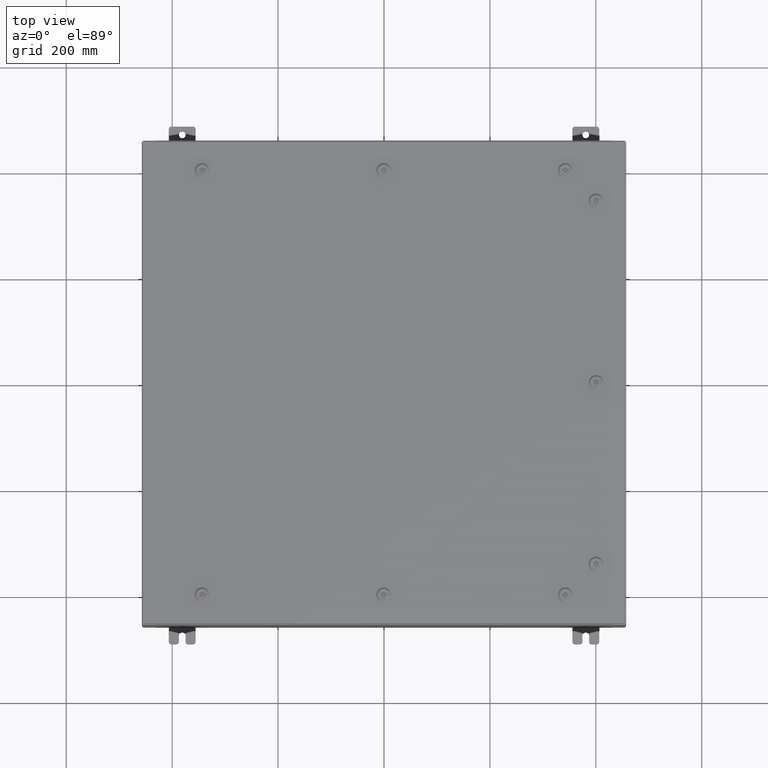
[diagram: clean part render]
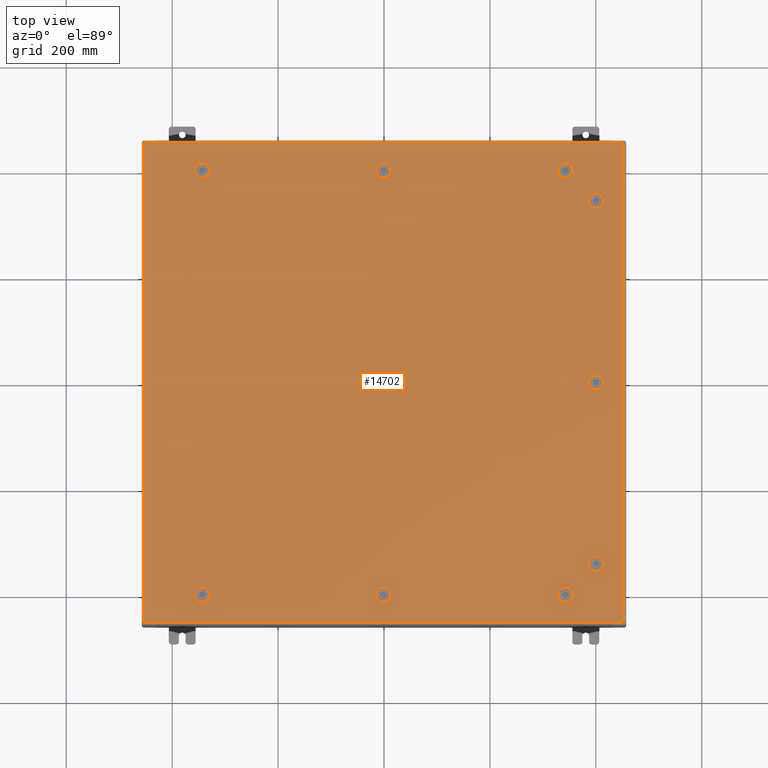
[diagram: same view with one face highlighted and labeled with its STEP entity id]
A machine part, top view. The second image highlights one B-rep face of the part: STEP entity #14702.
In plain terms, the highlighted planar face has unit normal (0, 0, -1).
Its self-contained STEP definition (entity closure, byte-faithful):
#84 = ORIENTED_EDGE ( 'NONE', *, *, #4617, .F. ) ;
#136 = VERTEX_POINT ( 'NONE', #55654 ) ;
#167 = DIRECTION ( 'NONE',  ( 1.000000000000000000, -0.0000000000000000000, -0.0000000000000000000 ) ) ;
#255 = DIRECTION ( 'NONE',  ( 0.0000000000000000000, 0.0000000000000000000, 1.000000000000000000 ) ) ;
#260 = AXIS2_PLACEMENT_3D ( 'NONE', #65249, #33523, #1820 ) ;
#743 = DIRECTION ( 'NONE',  ( 1.000000000000000000, 0.0000000000000000000, 0.0000000000000000000 ) ) ;
#1001 = DIRECTION ( 'NONE',  ( -1.000000000000000000, 0.0000000000000000000, 7.785697190086061500E-029 ) ) ;
#1033 = DIRECTION ( 'NONE',  ( -6.982962677686266700E-015, -6.982962677686266700E-015, 1.000000000000000000 ) ) ;
#1062 = CARTESIAN_POINT ( 'NONE',  ( -17.84979999999999800, -17.84979999999999800, -2.048885995248197400E-016 ) ) ;
#1188 = DIRECTION ( 'NONE',  ( 5.478697338139220100E-015, 1.000000000000000000, 6.982962677686228100E-015 ) ) ;
#1321 = VECTOR ( 'NONE', #66426, 39.37007874015748100 ) ;
#1329 = EDGE_CURVE ( 'NONE', #37570, #46465, #41864, .T. ) ;
#1343 = CIRCLE ( 'NONE', #22733, 0.4424999999999961700 ) ;
#1820 = DIRECTION ( 'NONE',  ( 1.000000000000000000, 0.0000000000000000000, 0.0000000000000000000 ) ) ;
#1841 = VECTOR ( 'NONE', #38104, 39.37007874015748100 ) ;
#1919 = VERTEX_POINT ( 'NONE', #65759 ) ;
#2201 = CARTESIAN_POINT ( 'NONE',  ( -13.30054762473210200, -15.39280000000000300, -2.493734682567286900E-013 ) ) ;
#2258 = EDGE_CURVE ( 'NONE', #33039, #64110, #36796, .T. ) ;
#2467 = CARTESIAN_POINT ( 'NONE',  ( -13.30054762473209400, -16.18279999999999000, -2.548900087721007400E-013 ) ) ;
#2507 = DIRECTION ( 'NONE',  ( 0.0000000000000000000, 0.0000000000000000000, 1.000000000000000000 ) ) ;
#2641 = CARTESIAN_POINT ( 'NONE',  ( 1.529834876451987200E-014, -15.78779999999999500, -2.521317385144146900E-013 ) ) ;
#2755 = LINE ( 'NONE', #38252, #60786 ) ;
#2900 = CARTESIAN_POINT ( 'NONE',  ( -13.49999999999998600, 15.78779999999999500, 0.0000000000000000000 ) ) ;
#2976 = EDGE_CURVE ( 'NONE', #136, #62379, #2755, .T. ) ;
#3071 = VERTEX_POINT ( 'NONE', #54706 ) ;
#3361 = CARTESIAN_POINT ( 'NONE',  ( 0.4425000000000126100, 15.78779999999999500, 0.0000000000000000000 ) ) ;
#3412 = DIRECTION ( 'NONE',  ( -1.000000000000000000, -0.0000000000000000000, -6.982962677686265900E-015 ) ) ;
#3430 = DIRECTION ( 'NONE',  ( 1.000000000000000000, 0.0000000000000000000, 0.0000000000000000000 ) ) ;
#3502 = VECTOR ( 'NONE', #48443, 39.37007874015748100 ) ;
#3702 = ORIENTED_EDGE ( 'NONE', *, *, #8834, .T. ) ;
#3941 = CARTESIAN_POINT ( 'NONE',  ( 0.1994523752678995500, 15.39279999999999900, 0.0000000000000000000 ) ) ;
#4617 = EDGE_CURVE ( 'NONE', #41003, #43374, #7604, .T. ) ;
#5189 = VECTOR ( 'NONE', #167, 39.37007874015748100 ) ;
#5759 = CARTESIAN_POINT ( 'NONE',  ( 15.78780000000000600, 13.50000000000001800, 0.0000000000000000000 ) ) ;
#5997 = CARTESIAN_POINT ( 'NONE',  ( 0.0000000000000000000, 0.0000000000000000000, 0.0000000000000000000 ) ) ;
#6594 = VERTEX_POINT ( 'NONE', #46239 ) ;
#6671 = VERTEX_POINT ( 'NONE', #57542 ) ;
#7236 = CARTESIAN_POINT ( 'NONE',  ( -0.1994523752678689600, -15.39279999999999900, -2.493734682567286400E-013 ) ) ;
#7458 = VECTOR ( 'NONE', #17198, 39.37007874015748100 ) ;
#7604 = LINE ( 'NONE', #63474, #21705 ) ;
#7630 = EDGE_CURVE ( 'NONE', #3071, #38540, #47163, .T. ) ;
#7969 = DIRECTION ( 'NONE',  ( 0.0000000000000000000, 1.000000000000000000, 6.982962677686270700E-015 ) ) ;
#8011 = EDGE_CURVE ( 'NONE', #31448, #41632, #35442, .T. ) ;
#8069 = VERTEX_POINT ( 'NONE', #36093 ) ;
#8224 = DIRECTION ( 'NONE',  ( 1.000000000000000000, 0.0000000000000000000, 0.0000000000000000000 ) ) ;
#8429 = LINE ( 'NONE', #36898, #34919 ) ;
#8506 = VERTEX_POINT ( 'NONE', #59247 ) ;
#8562 = DIRECTION ( 'NONE',  ( -0.0000000000000000000, -6.982962677686266700E-015, 1.000000000000000000 ) ) ;
#8576 = FACE_BOUND ( 'NONE', #49106, .T. ) ;
#8596 = VECTOR ( 'NONE', #31185, 39.37007874015748100 ) ;
#8673 = VERTEX_POINT ( 'NONE', #39986 ) ;
#8693 = DIRECTION ( 'NONE',  ( 0.0000000000000000000, 0.0000000000000000000, 1.000000000000000000 ) ) ;
#8700 = EDGE_LOOP ( 'NONE', ( #29620, #19243, #26898, #16759, #17093 ) ) ;
#8834 = EDGE_CURVE ( 'NONE', #41562, #55018, #37085, .T. ) ;
#8958 = VECTOR ( 'NONE', #46333, 39.37007874015748100 ) ;
#9057 = LINE ( 'NONE', #45118, #46384 ) ;
#9372 = ORIENTED_EDGE ( 'NONE', *, *, #7630, .F. ) ;
#9386 = AXIS2_PLACEMENT_3D ( 'NONE', #51513, #19702, #56805 ) ;
#9603 = ORIENTED_EDGE ( 'NONE', *, *, #65874, .F. ) ;
#9851 = CARTESIAN_POINT ( 'NONE',  ( 13.49999999999998600, -15.78779999999999900, -1.578617423656501800E-013 ) ) ;
#9902 = VECTOR ( 'NONE', #39394, 39.37007874015748100 ) ;
#9949 = AXIS2_PLACEMENT_3D ( 'NONE', #2900, #39970, #8224 ) ;
#10236 = FACE_BOUND ( 'NONE', #48684, .T. ) ;
#10536 = VECTOR ( 'NONE', #20021, 39.37007874015748100 ) ;
#10583 = VERTEX_POINT ( 'NONE', #64910 ) ;
#10593 = CIRCLE ( 'NONE', #38990, 0.4424999999999983400 ) ;
#10904 = CARTESIAN_POINT ( 'NONE',  ( -17.84979999999998100, 17.84979999999999800, -2.048885995248197400E-016 ) ) ;
#11062 = DIRECTION ( 'NONE',  ( 1.000000000000000000, 0.0000000000000000000, 0.0000000000000000000 ) ) ;
#11197 = CARTESIAN_POINT ( 'NONE',  ( 13.30054762473210200, 15.39279999999999900, -9.287722765629301200E-014 ) ) ;
#11287 = DIRECTION ( 'NONE',  ( 0.0000000000000000000, 0.0000000000000000000, -1.000000000000000000 ) ) ;
#11830 = ORIENTED_EDGE ( 'NONE', *, *, #48312, .F. ) ;
#11840 = CARTESIAN_POINT ( 'NONE',  ( -13.30054762473209400, 16.18279999999998600, 0.0000000000000000000 ) ) ;
#12114 = VERTEX_POINT ( 'NONE', #26027 ) ;
#12492 = EDGE_CURVE ( 'NONE', #44415, #6594, #25301, .T. ) ;
#12505 = CIRCLE ( 'NONE', #50710, 0.4424999999999961700 ) ;
#12583 = DIRECTION ( 'NONE',  ( 6.982962677686266700E-015, -0.0000000000000000000, 1.000000000000000000 ) ) ;
#12743 = CARTESIAN_POINT ( 'NONE',  ( 0.1994523752679070700, -16.18279999999998600, -2.548900087721007400E-013 ) ) ;
#12957 = CARTESIAN_POINT ( 'NONE',  ( 17.84979999999999800, -17.84979999999999800, -2.048885995248197400E-016 ) ) ;
#13039 = ORIENTED_EDGE ( 'NONE', *, *, #50912, .F. ) ;
#13162 = AXIS2_PLACEMENT_3D ( 'NONE', #28182, #65222, #33494 ) ;
#13505 = ORIENTED_EDGE ( 'NONE', *, *, #40192, .F. ) ;
#13646 = CARTESIAN_POINT ( 'NONE',  ( -13.05749999999998900, -15.78779999999999900, -2.521317385144146900E-013 ) ) ;
#13889 = AXIS2_PLACEMENT_3D ( 'NONE', #64192, #32439, #743 ) ;
#14228 = DIRECTION ( 'NONE',  ( 6.982962677686266700E-015, -0.0000000000000000000, 1.000000000000000000 ) ) ;
#14401 = CARTESIAN_POINT ( 'NONE',  ( -0.1994523752678657400, -16.18279999999999000, 0.0000000000000000000 ) ) ;
#14702 = ADVANCED_FACE ( 'NONE', ( #52588, #50891, #25989, #10236, #36776, #22662, #8576, #63272, #49256, #35065 ), #48190, .F. ) ;
#15161 = DIRECTION ( 'NONE',  ( 1.000000000000000000, 0.0000000000000000000, 6.982962677686304600E-015 ) ) ;
#15263 = LINE ( 'NONE', #55450, #55925 ) ;
#15441 = EDGE_CURVE ( 'NONE', #56810, #56915, #40026, .T. ) ;
#16226 = LINE ( 'NONE', #61529, #28666 ) ;
#16535 = CARTESIAN_POINT ( 'NONE',  ( -0.1994523752678657400, 16.18279999999999000, 0.0000000000000000000 ) ) ;
#16563 = DIRECTION ( 'NONE',  ( 6.982962677686266700E-015, -0.0000000000000000000, 1.000000000000000000 ) ) ;
#16622 = CARTESIAN_POINT ( 'NONE',  ( 0.1994523752679067700, 16.18279999999998600, 0.0000000000000000000 ) ) ;
#16759 = ORIENTED_EDGE ( 'NONE', *, *, #68372, .F. ) ;
#17072 = CARTESIAN_POINT ( 'NONE',  ( 16.18280000000000700, -13.30054762473213300, -9.287722765629316300E-014 ) ) ;
#17093 = ORIENTED_EDGE ( 'NONE', *, *, #1329, .F. ) ;
#17162 = CIRCLE ( 'NONE', #54663, 0.4424999999999961700 ) ;
#17198 = DIRECTION ( 'NONE',  ( 1.000000000000000000, -1.095739467627832000E-014, 6.982962677686152300E-015 ) ) ;
#17575 = LINE ( 'NONE', #16622, #3502 ) ;
#17897 = DIRECTION ( 'NONE',  ( 1.000000000000000000, -0.0000000000000000000, -0.0000000000000000000 ) ) ;
#17951 = EDGE_CURVE ( 'NONE', #47012, #58377, #19920, .T. ) ;
#18297 = CARTESIAN_POINT ( 'NONE',  ( 13.30054762473209400, 16.18279999999998600, -9.287722765629296100E-014 ) ) ;
#18357 = DIRECTION ( 'NONE',  ( 0.0000000000000000000, -1.000000000000000000, 0.0000000000000000000 ) ) ;
#18553 = VERTEX_POINT ( 'NONE', #2201 ) ;
#18610 = DIRECTION ( 'NONE',  ( 0.0000000000000000000, 1.000000000000000000, 6.982962677686270700E-015 ) ) ;
#18762 = AXIS2_PLACEMENT_3D ( 'NONE', #24556, #61614, #29850 ) ;
#18942 = ORIENTED_EDGE ( 'NONE', *, *, #52135, .F. ) ;
#19243 = ORIENTED_EDGE ( 'NONE', *, *, #17951, .F. ) ;
#19271 = EDGE_CURVE ( 'NONE', #6671, #52810, #53904, .T. ) ;
#19702 = DIRECTION ( 'NONE',  ( 0.0000000000000000000, 0.0000000000000000000, 1.000000000000000000 ) ) ;
#19781 = CARTESIAN_POINT ( 'NONE',  ( 15.39280000000001200, -13.30054762473213400, 0.0000000000000000000 ) ) ;
#19860 = EDGE_CURVE ( 'NONE', #53903, #8673, #60021, .T. ) ;
#19872 = CIRCLE ( 'NONE', #60905, 0.4424999999999961700 ) ;
#19920 = CIRCLE ( 'NONE', #18762, 0.4424999999999969000 ) ;
#20021 = DIRECTION ( 'NONE',  ( -1.000000000000000000, -0.0000000000000000000, -0.0000000000000000000 ) ) ;
#20192 = AXIS2_PLACEMENT_3D ( 'NONE', #58341, #26596, #63648 ) ;
#20227 = EDGE_CURVE ( 'NONE', #56915, #8069, #62455, .T. ) ;
#20450 = VECTOR ( 'NONE', #58279, 39.37007874015748100 ) ;
#20537 = ORIENTED_EDGE ( 'NONE', *, *, #38611, .F. ) ;
#21191 = CARTESIAN_POINT ( 'NONE',  ( 15.39280000000001400, 13.69945237526790600, 0.0000000000000000000 ) ) ;
#21196 = ORIENTED_EDGE ( 'NONE', *, *, #35280, .F. ) ;
#21221 = EDGE_CURVE ( 'NONE', #64110, #28075, #48379, .T. ) ;
#21449 = CARTESIAN_POINT ( 'NONE',  ( 15.78780000000000800, -13.50000000000001800, -9.426999614876466400E-014 ) ) ;
#21643 = EDGE_CURVE ( 'NONE', #22486, #6671, #61528, .T. ) ;
#21705 = VECTOR ( 'NONE', #63255, 39.37007874015748100 ) ;
#21823 = CARTESIAN_POINT ( 'NONE',  ( -13.69945237526786900, 15.39279999999999900, 0.0000000000000000000 ) ) ;
#22002 = CIRCLE ( 'NONE', #51927, 0.4424999999999961700 ) ;
#22431 = EDGE_CURVE ( 'NONE', #64691, #41562, #8429, .T. ) ;
#22486 = VERTEX_POINT ( 'NONE', #21823 ) ;
#22662 = FACE_BOUND ( 'NONE', #51184, .T. ) ;
#22733 = AXIS2_PLACEMENT_3D ( 'NONE', #66857, #35117, #3430 ) ;
#22893 = VERTEX_POINT ( 'NONE', #25675 ) ;
#23278 = EDGE_LOOP ( 'NONE', ( #59585, #64594, #3702, #35744 ) ) ;
#23481 = ORIENTED_EDGE ( 'NONE', *, *, #57834, .F. ) ;
#23878 = VERTEX_POINT ( 'NONE', #44855 ) ;
#23982 = LINE ( 'NONE', #18297, #9902 ) ;
#24454 = CIRCLE ( 'NONE', #9949, 0.4424999999999983400 ) ;
#24474 = CARTESIAN_POINT ( 'NONE',  ( 13.49999999999998600, -15.78779999999999900, -1.578617423656501800E-013 ) ) ;
#24556 = CARTESIAN_POINT ( 'NONE',  ( 1.529834876451987200E-014, 15.78779999999999500, 0.0000000000000000000 ) ) ;
#25070 = CARTESIAN_POINT ( 'NONE',  ( 15.39280000000001000, -0.1994523752678671000, 0.0000000000000000000 ) ) ;
#25144 = VERTEX_POINT ( 'NONE', #33766 ) ;
#25151 = DIRECTION ( 'NONE',  ( 1.095739467627838000E-014, -1.000000000000000000, -6.982962677686269100E-015 ) ) ;
#25301 = LINE ( 'NONE', #29360, #53578 ) ;
#25344 = CIRCLE ( 'NONE', #52444, 0.4424999999999973400 ) ;
#25483 = EDGE_CURVE ( 'NONE', #62379, #36465, #45563, .T. ) ;
#25675 = CARTESIAN_POINT ( 'NONE',  ( 15.39280000000001000, 13.30054762473213400, 0.0000000000000000000 ) ) ;
#25989 = FACE_BOUND ( 'NONE', #36688, .T. ) ;
#26027 = CARTESIAN_POINT ( 'NONE',  ( 13.69945237526786900, -15.39280000000000300, 0.0000000000000000000 ) ) ;
#26175 = EDGE_CURVE ( 'NONE', #41632, #42017, #36360, .T. ) ;
#26237 = VECTOR ( 'NONE', #1001, 39.37007874015748100 ) ;
#26596 = DIRECTION ( 'NONE',  ( -0.0000000000000000000, -6.982962677686266700E-015, 1.000000000000000000 ) ) ;
#26711 = CARTESIAN_POINT ( 'NONE',  ( 15.78780000000000800, -13.50000000000001800, -9.426999614876466400E-014 ) ) ;
#26796 = CARTESIAN_POINT ( 'NONE',  ( -13.30054762473210200, 15.39279999999999900, 0.0000000000000000000 ) ) ;
#26803 = DIRECTION ( 'NONE',  ( 0.0000000000000000000, 1.000000000000000000, 6.982962677686269100E-015 ) ) ;
#26862 = CARTESIAN_POINT ( 'NONE',  ( -13.30054762473209400, 16.18279999999998600, 0.0000000000000000000 ) ) ;
#26898 = ORIENTED_EDGE ( 'NONE', *, *, #60676, .F. ) ;
#27459 = ORIENTED_EDGE ( 'NONE', *, *, #21221, .F. ) ;
#27564 = CARTESIAN_POINT ( 'NONE',  ( 1.529834876451987200E-014, -15.78779999999999500, -2.521317385144146900E-013 ) ) ;
#27625 = EDGE_CURVE ( 'NONE', #43235, #54197, #47901, .T. ) ;
#28075 = VERTEX_POINT ( 'NONE', #30937 ) ;
#28182 = CARTESIAN_POINT ( 'NONE',  ( -13.49999999999998600, -15.78779999999999900, -2.521317385144146900E-013 ) ) ;
#28342 = EDGE_CURVE ( 'NONE', #38540, #30471, #54491, .T. ) ;
#28484 = DIRECTION ( 'NONE',  ( -0.0000000000000000000, -6.982962677686266700E-015, 1.000000000000000000 ) ) ;
#28510 = CARTESIAN_POINT ( 'NONE',  ( 16.18280000000000400, 13.30054762473213300, 0.0000000000000000000 ) ) ;
#28666 = VECTOR ( 'NONE', #3412, 39.37007874015748100 ) ;
#28766 = LINE ( 'NONE', #51632, #41224 ) ;
#29138 = CARTESIAN_POINT ( 'NONE',  ( -13.69945237526786700, -16.18279999999999700, 0.0000000000000000000 ) ) ;
#29248 = EDGE_CURVE ( 'NONE', #6594, #41176, #1343, .T. ) ;
#29360 = CARTESIAN_POINT ( 'NONE',  ( 16.18280000000000000, 13.69945237526790100, 0.0000000000000000000 ) ) ;
#29620 = ORIENTED_EDGE ( 'NONE', *, *, #36952, .F. ) ;
#29770 = DIRECTION ( 'NONE',  ( 1.000000000000000000, 0.0000000000000000000, 6.982962677686270700E-015 ) ) ;
#29850 = DIRECTION ( 'NONE',  ( 1.000000000000000000, 0.0000000000000000000, 0.0000000000000000000 ) ) ;
#30079 = ORIENTED_EDGE ( 'NONE', *, *, #63948, .F. ) ;
#30471 = VERTEX_POINT ( 'NONE', #7236 ) ;
#30916 = VERTEX_POINT ( 'NONE', #67636 ) ;
#30937 = CARTESIAN_POINT ( 'NONE',  ( 16.18280000000000700, -0.1994523752678676000, 0.0000000000000000000 ) ) ;
#31049 = EDGE_LOOP ( 'NONE', ( #60035, #68272, #37847, #20537 ) ) ;
#31185 = DIRECTION ( 'NONE',  ( -1.095739467627836100E-014, -1.000000000000000000, 0.0000000000000000000 ) ) ;
#31356 = VECTOR ( 'NONE', #17897, 39.37007874015748100 ) ;
#31448 = VERTEX_POINT ( 'NONE', #29138 ) ;
#31618 = CARTESIAN_POINT ( 'NONE',  ( 0.1994523752678995500, -15.39279999999999900, -2.493734682567286900E-013 ) ) ;
#31749 = EDGE_CURVE ( 'NONE', #52810, #43235, #24454, .T. ) ;
#31933 = CARTESIAN_POINT ( 'NONE',  ( 1.529834876451987200E-014, 15.78779999999999500, 0.0000000000000000000 ) ) ;
#32439 = DIRECTION ( 'NONE',  ( 0.0000000000000000000, 0.0000000000000000000, 1.000000000000000000 ) ) ;
#32723 = CARTESIAN_POINT ( 'NONE',  ( 13.49999999999998600, -15.78779999999999900, -1.578617423656501800E-013 ) ) ;
#32861 = DIRECTION ( 'NONE',  ( 0.0000000000000000000, 1.000000000000000000, 6.982962677686304600E-015 ) ) ;
#33039 = VERTEX_POINT ( 'NONE', #36596 ) ;
#33052 = CARTESIAN_POINT ( 'NONE',  ( 13.69945237526786700, -16.18279999999999700, -1.592272441308647100E-013 ) ) ;
#33169 = CIRCLE ( 'NONE', #48074, 0.4424999999999983400 ) ;
#33494 = DIRECTION ( 'NONE',  ( 0.0000000000000000000, 1.000000000000000000, 6.982962677686270700E-015 ) ) ;
#33523 = DIRECTION ( 'NONE',  ( 0.0000000000000000000, 0.0000000000000000000, 1.000000000000000000 ) ) ;
#33631 = CARTESIAN_POINT ( 'NONE',  ( 0.1994523752678995500, 15.39279999999999900, 0.0000000000000000000 ) ) ;
#33766 = CARTESIAN_POINT ( 'NONE',  ( 13.30054762473209400, 16.18279999999998600, -9.287722765629296100E-014 ) ) ;
#34221 = CARTESIAN_POINT ( 'NONE',  ( 15.78780000000000600, 1.529834876451990400E-014, 0.0000000000000000000 ) ) ;
#34294 = EDGE_CURVE ( 'NONE', #10583, #25144, #23982, .T. ) ;
#34531 = LINE ( 'NONE', #21191, #20450 ) ;
#34919 = VECTOR ( 'NONE', #68615, 39.37007874015748100 ) ;
#35065 = FACE_OUTER_BOUND ( 'NONE', #23278, .T. ) ;
#35117 = DIRECTION ( 'NONE',  ( 0.0000000000000000000, 0.0000000000000000000, 1.000000000000000000 ) ) ;
#35280 = EDGE_CURVE ( 'NONE', #8673, #62961, #48133, .T. ) ;
#35442 = LINE ( 'NONE', #56954, #8958 ) ;
#35744 = ORIENTED_EDGE ( 'NONE', *, *, #52579, .T. ) ;
#36064 = EDGE_CURVE ( 'NONE', #42017, #18553, #67061, .T. ) ;
#36093 = CARTESIAN_POINT ( 'NONE',  ( 13.94249999999998300, 15.78779999999999500, -9.735995713364067600E-014 ) ) ;
#36242 = EDGE_CURVE ( 'NONE', #18553, #23878, #9057, .T. ) ;
#36360 = CIRCLE ( 'NONE', #43998, 0.4424999999999983400 ) ;
#36465 = VERTEX_POINT ( 'NONE', #19781 ) ;
#36550 = CARTESIAN_POINT ( 'NONE',  ( 15.39280000000001400, 0.1994523752679053800, 0.0000000000000000000 ) ) ;
#36590 = ORIENTED_EDGE ( 'NONE', *, *, #26175, .F. ) ;
#36596 = CARTESIAN_POINT ( 'NONE',  ( 15.39280000000001400, 0.1994523752679062100, 0.0000000000000000000 ) ) ;
#36688 = EDGE_LOOP ( 'NONE', ( #37546, #27459, #40452, #18942 ) ) ;
#36776 = FACE_BOUND ( 'NONE', #41605, .T. ) ;
#36796 = LINE ( 'NONE', #36550, #8596 ) ;
#36898 = CARTESIAN_POINT ( 'NONE',  ( 17.84979999999999800, -17.84979999999999800, -2.048885995248197400E-016 ) ) ;
#36952 = EDGE_CURVE ( 'NONE', #58377, #37570, #54632, .T. ) ;
#37085 = LINE ( 'NONE', #51834, #10536 ) ;
#37274 = CIRCLE ( 'NONE', #38493, 0.4424999999999983400 ) ;
#37302 = DIRECTION ( 'NONE',  ( 1.000000000000000000, 0.0000000000000000000, 0.0000000000000000000 ) ) ;
#37546 = ORIENTED_EDGE ( 'NONE', *, *, #68622, .F. ) ;
#37570 = VERTEX_POINT ( 'NONE', #3941 ) ;
#37847 = ORIENTED_EDGE ( 'NONE', *, *, #2976, .F. ) ;
#37986 = AXIS2_PLACEMENT_3D ( 'NONE', #24474, #61536, #29770 ) ;
#38079 = DIRECTION ( 'NONE',  ( 1.000000000000000000, 0.0000000000000000000, 6.982962677686304600E-015 ) ) ;
#38104 = DIRECTION ( 'NONE',  ( 1.000000000000000000, -0.0000000000000000000, -0.0000000000000000000 ) ) ;
#38167 = ORIENTED_EDGE ( 'NONE', *, *, #31749, .F. ) ;
#38252 = CARTESIAN_POINT ( 'NONE',  ( 16.18280000000000400, -13.69945237526790100, -9.566276464123617700E-014 ) ) ;
#38382 = VECTOR ( 'NONE', #58937, 39.37007874015748100 ) ;
#38493 = AXIS2_PLACEMENT_3D ( 'NONE', #2641, #39701, #7969 ) ;
#38540 = VERTEX_POINT ( 'NONE', #31618 ) ;
#38611 = EDGE_CURVE ( 'NONE', #54400, #136, #17162, .T. ) ;
#38651 = CIRCLE ( 'NONE', #42143, 0.4424999999999961700 ) ;
#38990 = AXIS2_PLACEMENT_3D ( 'NONE', #5759, #42835, #11062 ) ;
#39394 = DIRECTION ( 'NONE',  ( -1.000000000000000000, -1.095739467627832000E-014, 6.982962677686228800E-015 ) ) ;
#39570 = DIRECTION ( 'NONE',  ( 1.000000000000000000, 0.0000000000000000000, 0.0000000000000000000 ) ) ;
#39701 = DIRECTION ( 'NONE',  ( -0.0000000000000000000, -6.982962677686266700E-015, 1.000000000000000000 ) ) ;
#39856 = CIRCLE ( 'NONE', #20192, 0.4424999999999961700 ) ;
#39970 = DIRECTION ( 'NONE',  ( 0.0000000000000000000, 0.0000000000000000000, 1.000000000000000000 ) ) ;
#39986 = CARTESIAN_POINT ( 'NONE',  ( 13.30054762473209400, -16.18279999999999000, -1.620127811158077700E-013 ) ) ;
#40026 = LINE ( 'NONE', #11197, #38382 ) ;
#40192 = EDGE_CURVE ( 'NONE', #12114, #53903, #16226, .T. ) ;
#40295 = CARTESIAN_POINT ( 'NONE',  ( -13.49999999999998600, -15.78779999999999900, -2.521317385144146900E-013 ) ) ;
#40429 = CARTESIAN_POINT ( 'NONE',  ( 15.78780000000000600, 1.529834876451990400E-014, 0.0000000000000000000 ) ) ;
#40452 = ORIENTED_EDGE ( 'NONE', *, *, #2258, .F. ) ;
#41003 = VERTEX_POINT ( 'NONE', #14401 ) ;
#41176 = VERTEX_POINT ( 'NONE', #47358 ) ;
#41224 = VECTOR ( 'NONE', #25151, 39.37007874015748100 ) ;
#41562 = VERTEX_POINT ( 'NONE', #60150 ) ;
#41605 = EDGE_LOOP ( 'NONE', ( #67035, #49418, #51635, #64442, #36590 ) ) ;
#41632 = VERTEX_POINT ( 'NONE', #2467 ) ;
#41864 = CIRCLE ( 'NONE', #9386, 0.4424999999999973400 ) ;
#42017 = VERTEX_POINT ( 'NONE', #13646 ) ;
#42143 = AXIS2_PLACEMENT_3D ( 'NONE', #27564, #64599, #32861 ) ;
#42720 = CIRCLE ( 'NONE', #58150, 0.4424999999999983400 ) ;
#42835 = DIRECTION ( 'NONE',  ( 0.0000000000000000000, 0.0000000000000000000, 1.000000000000000000 ) ) ;
#42841 = CARTESIAN_POINT ( 'NONE',  ( -0.1994523752678689600, 15.39279999999999900, 0.0000000000000000000 ) ) ;
#43082 = EDGE_CURVE ( 'NONE', #54197, #22486, #53424, .T. ) ;
#43235 = VERTEX_POINT ( 'NONE', #11840 ) ;
#43374 = VERTEX_POINT ( 'NONE', #12743 ) ;
#43754 = ORIENTED_EDGE ( 'NONE', *, *, #20227, .F. ) ;
#43809 = AXIS2_PLACEMENT_3D ( 'NONE', #48375, #16563, #53708 ) ;
#43998 = AXIS2_PLACEMENT_3D ( 'NONE', #40295, #8562, #45660 ) ;
#44362 = CARTESIAN_POINT ( 'NONE',  ( 13.49999999999998600, 15.78779999999999500, -9.426999614876453700E-014 ) ) ;
#44415 = VERTEX_POINT ( 'NONE', #28510 ) ;
#44855 = CARTESIAN_POINT ( 'NONE',  ( -13.69945237526786900, -15.39280000000000300, -2.493734682567286400E-013 ) ) ;
#45012 = EDGE_CURVE ( 'NONE', #8506, #64691, #45807, .T. ) ;
#45117 = ORIENTED_EDGE ( 'NONE', *, *, #50175, .F. ) ;
#45118 = CARTESIAN_POINT ( 'NONE',  ( -13.30054762473210200, -15.39280000000000300, -2.493734682567286900E-013 ) ) ;
#45409 = DIRECTION ( 'NONE',  ( -5.478697338139220100E-015, 1.000000000000000000, -0.0000000000000000000 ) ) ;
#45563 = CIRCLE ( 'NONE', #46627, 0.4424999999999983400 ) ;
#45660 = DIRECTION ( 'NONE',  ( 0.0000000000000000000, 1.000000000000000000, 6.982962677686270700E-015 ) ) ;
#45789 = DIRECTION ( 'NONE',  ( 1.000000000000000000, 0.0000000000000000000, 0.0000000000000000000 ) ) ;
#45807 = LINE ( 'NONE', #1062, #1841 ) ;
#46030 = CARTESIAN_POINT ( 'NONE',  ( 13.49999999999998600, 15.78779999999999500, -9.426999614876453700E-014 ) ) ;
#46086 = EDGE_LOOP ( 'NONE', ( #63054, #9603, #11830, #52948 ) ) ;
#46239 = CARTESIAN_POINT ( 'NONE',  ( 16.18280000000000000, 13.69945237526790100, 0.0000000000000000000 ) ) ;
#46267 = ORIENTED_EDGE ( 'NONE', *, *, #19860, .F. ) ;
#46333 = DIRECTION ( 'NONE',  ( 1.000000000000000000, 1.095739467627832000E-014, 7.785697190085955000E-029 ) ) ;
#46384 = VECTOR ( 'NONE', #50445, 39.37007874015748100 ) ;
#46465 = VERTEX_POINT ( 'NONE', #3361 ) ;
#46627 = AXIS2_PLACEMENT_3D ( 'NONE', #26711, #50396, #18610 ) ;
#46970 = DIRECTION ( 'NONE',  ( -6.982962677686266700E-015, -6.982962677686266700E-015, 1.000000000000000000 ) ) ;
#47012 = VERTEX_POINT ( 'NONE', #16535 ) ;
#47163 = CIRCLE ( 'NONE', #48698, 0.4424999999999983400 ) ;
#47358 = CARTESIAN_POINT ( 'NONE',  ( 15.39280000000001400, 13.69945237526790600, 0.0000000000000000000 ) ) ;
#47525 = ORIENTED_EDGE ( 'NONE', *, *, #34294, .F. ) ;
#47855 = ORIENTED_EDGE ( 'NONE', *, *, #56669, .F. ) ;
#47901 = LINE ( 'NONE', #26862, #61923 ) ;
#48074 = AXIS2_PLACEMENT_3D ( 'NONE', #46030, #14228, #51354 ) ;
#48092 = EDGE_CURVE ( 'NONE', #36465, #54400, #28766, .T. ) ;
#48110 = CARTESIAN_POINT ( 'NONE',  ( -13.69945237526786700, 16.18279999999999000, 0.0000000000000000000 ) ) ;
#48133 = LINE ( 'NONE', #59382, #7458 ) ;
#48190 = PLANE ( 'NONE',  #53356 ) ;
#48312 = EDGE_CURVE ( 'NONE', #41176, #22893, #34531, .T. ) ;
#48375 = CARTESIAN_POINT ( 'NONE',  ( 13.49999999999998600, 15.78779999999999500, -9.426999614876453700E-014 ) ) ;
#48379 = CIRCLE ( 'NONE', #58890, 0.4424999999999983400 ) ;
#48432 = DIRECTION ( 'NONE',  ( -1.000000000000000000, 0.0000000000000000000, -0.0000000000000000000 ) ) ;
#48443 = DIRECTION ( 'NONE',  ( -1.000000000000000000, 1.095739467627836100E-014, 0.0000000000000000000 ) ) ;
#48684 = EDGE_LOOP ( 'NONE', ( #13505, #45117, #23481, #21196, #46267 ) ) ;
#48698 = AXIS2_PLACEMENT_3D ( 'NONE', #60216, #28484, #65528 ) ;
#49106 = EDGE_LOOP ( 'NONE', ( #47525, #47855, #43754, #53106, #62569 ) ) ;
#49256 = FACE_BOUND ( 'NONE', #8700, .T. ) ;
#49418 = ORIENTED_EDGE ( 'NONE', *, *, #62302, .F. ) ;
#49553 = ORIENTED_EDGE ( 'NONE', *, *, #43082, .F. ) ;
#49705 = DIRECTION ( 'NONE',  ( -1.000000000000000000, 0.0000000000000000000, 6.982962677686269100E-015 ) ) ;
#49867 = ORIENTED_EDGE ( 'NONE', *, *, #27625, .F. ) ;
#50175 = EDGE_CURVE ( 'NONE', #57611, #12114, #22002, .T. ) ;
#50396 = DIRECTION ( 'NONE',  ( -0.0000000000000000000, -6.982962677686266700E-015, 1.000000000000000000 ) ) ;
#50445 = DIRECTION ( 'NONE',  ( -1.000000000000000000, 0.0000000000000000000, 7.785697190086082800E-029 ) ) ;
#50710 = AXIS2_PLACEMENT_3D ( 'NONE', #44362, #12583, #49705 ) ;
#50753 = ORIENTED_EDGE ( 'NONE', *, *, #21643, .F. ) ;
#50891 = FACE_BOUND ( 'NONE', #46086, .T. ) ;
#50912 = EDGE_CURVE ( 'NONE', #30471, #41003, #38651, .T. ) ;
#51184 = EDGE_LOOP ( 'NONE', ( #84, #13039, #58716, #9372, #30079 ) ) ;
#51354 = DIRECTION ( 'NONE',  ( -1.000000000000000000, 0.0000000000000000000, 6.982962677686270700E-015 ) ) ;
#51513 = CARTESIAN_POINT ( 'NONE',  ( 1.529834876451987200E-014, 15.78779999999999500, 0.0000000000000000000 ) ) ;
#51632 = CARTESIAN_POINT ( 'NONE',  ( 15.39280000000001500, -13.69945237526790600, -9.566276464123621500E-014 ) ) ;
#51635 = ORIENTED_EDGE ( 'NONE', *, *, #36242, .F. ) ;
#51834 = CARTESIAN_POINT ( 'NONE',  ( 17.84979999999999800, 17.84980000000000200, 8.878505979408856000E-016 ) ) ;
#51927 = AXIS2_PLACEMENT_3D ( 'NONE', #9851, #46970, #15161 ) ;
#52135 = EDGE_CURVE ( 'NONE', #1919, #33039, #42720, .T. ) ;
#52444 = AXIS2_PLACEMENT_3D ( 'NONE', #31933, #255, #37302 ) ;
#52579 = EDGE_CURVE ( 'NONE', #55018, #8506, #15263, .T. ) ;
#52588 = FACE_BOUND ( 'NONE', #31049, .T. ) ;
#52810 = VERTEX_POINT ( 'NONE', #68613 ) ;
#52874 = ORIENTED_EDGE ( 'NONE', *, *, #19271, .F. ) ;
#52948 = ORIENTED_EDGE ( 'NONE', *, *, #29248, .F. ) ;
#53106 = ORIENTED_EDGE ( 'NONE', *, *, #15441, .F. ) ;
#53356 = AXIS2_PLACEMENT_3D ( 'NONE', #5997, #11287, #48432 ) ;
#53424 = CIRCLE ( 'NONE', #13889, 0.4424999999999961700 ) ;
#53578 = VECTOR ( 'NONE', #45409, 39.37007874015748100 ) ;
#53708 = DIRECTION ( 'NONE',  ( -1.000000000000000000, 0.0000000000000000000, 6.982962677686269100E-015 ) ) ;
#53903 = VERTEX_POINT ( 'NONE', #55985 ) ;
#53904 = CIRCLE ( 'NONE', #260, 0.4424999999999983400 ) ;
#54197 = VERTEX_POINT ( 'NONE', #48110 ) ;
#54400 = VERTEX_POINT ( 'NONE', #65164 ) ;
#54491 = LINE ( 'NONE', #64437, #26237 ) ;
#54632 = LINE ( 'NONE', #33631, #31356 ) ;
#54663 = AXIS2_PLACEMENT_3D ( 'NONE', #21449, #58527, #26803 ) ;
#54706 = CARTESIAN_POINT ( 'NONE',  ( 0.4425000000000126100, -15.78779999999999500, -2.521317385144146900E-013 ) ) ;
#54934 = EDGE_LOOP ( 'NONE', ( #50753, #49553, #49867, #38167, #52874 ) ) ;
#55018 = VERTEX_POINT ( 'NONE', #10904 ) ;
#55450 = CARTESIAN_POINT ( 'NONE',  ( -17.84979999999998100, 17.84979999999999800, -2.048885995248197400E-016 ) ) ;
#55654 = CARTESIAN_POINT ( 'NONE',  ( 16.18280000000000400, -13.69945237526790100, -9.566276464123617700E-014 ) ) ;
#55925 = VECTOR ( 'NONE', #18357, 39.37007874015748100 ) ;
#55985 = CARTESIAN_POINT ( 'NONE',  ( 13.30054762473210200, -15.39280000000000300, -1.564962406004356200E-013 ) ) ;
#56669 = EDGE_CURVE ( 'NONE', #8069, #10583, #12505, .T. ) ;
#56805 = DIRECTION ( 'NONE',  ( 1.000000000000000000, 0.0000000000000000000, 0.0000000000000000000 ) ) ;
#56810 = VERTEX_POINT ( 'NONE', #66311 ) ;
#56915 = VERTEX_POINT ( 'NONE', #61797 ) ;
#56954 = CARTESIAN_POINT ( 'NONE',  ( -13.30054762473209400, -16.18279999999999000, -2.548900087721007400E-013 ) ) ;
#57434 = EDGE_CURVE ( 'NONE', #25144, #56810, #33169, .T. ) ;
#57542 = CARTESIAN_POINT ( 'NONE',  ( -13.30054762473210200, 15.39279999999999900, 0.0000000000000000000 ) ) ;
#57611 = VERTEX_POINT ( 'NONE', #63099 ) ;
#57671 = LINE ( 'NONE', #66199, #1321 ) ;
#57834 = EDGE_CURVE ( 'NONE', #62961, #57611, #19872, .T. ) ;
#58150 = AXIS2_PLACEMENT_3D ( 'NONE', #40429, #8693, #45789 ) ;
#58279 = DIRECTION ( 'NONE',  ( -1.095739467627838000E-014, -1.000000000000000000, 0.0000000000000000000 ) ) ;
#58341 = CARTESIAN_POINT ( 'NONE',  ( -13.49999999999998600, -15.78779999999999900, -2.521317385144146900E-013 ) ) ;
#58377 = VERTEX_POINT ( 'NONE', #42841 ) ;
#58527 = DIRECTION ( 'NONE',  ( -0.0000000000000000000, -6.982962677686266700E-015, 1.000000000000000000 ) ) ;
#58576 = DIRECTION ( 'NONE',  ( -1.000000000000000000, 1.095739467627832000E-014, 0.0000000000000000000 ) ) ;
#58716 = ORIENTED_EDGE ( 'NONE', *, *, #28342, .F. ) ;
#58890 = AXIS2_PLACEMENT_3D ( 'NONE', #34221, #2507, #39570 ) ;
#58937 = DIRECTION ( 'NONE',  ( 1.000000000000000000, 0.0000000000000000000, -6.982962677686306200E-015 ) ) ;
#59247 = CARTESIAN_POINT ( 'NONE',  ( -17.84979999999999800, -17.84979999999999800, -2.048885995248197400E-016 ) ) ;
#59382 = CARTESIAN_POINT ( 'NONE',  ( 13.30054762473209400, -16.18279999999999000, -1.620127811158077400E-013 ) ) ;
#59585 = ORIENTED_EDGE ( 'NONE', *, *, #45012, .T. ) ;
#60021 = CIRCLE ( 'NONE', #37986, 0.4424999999999983400 ) ;
#60035 = ORIENTED_EDGE ( 'NONE', *, *, #48092, .F. ) ;
#60150 = CARTESIAN_POINT ( 'NONE',  ( 17.84979999999999800, 17.84980000000000200, 8.878505979408856000E-016 ) ) ;
#60216 = CARTESIAN_POINT ( 'NONE',  ( 1.529834876451987200E-014, -15.78779999999999500, -2.521317385144146900E-013 ) ) ;
#60676 = EDGE_CURVE ( 'NONE', #30916, #47012, #17575, .T. ) ;
#60786 = VECTOR ( 'NONE', #1188, 39.37007874015748100 ) ;
#60905 = AXIS2_PLACEMENT_3D ( 'NONE', #32723, #1033, #38079 ) ;
#61528 = LINE ( 'NONE', #26796, #5189 ) ;
#61529 = CARTESIAN_POINT ( 'NONE',  ( 13.30054762473210200, -15.39280000000000300, -1.564962406004356200E-013 ) ) ;
#61536 = DIRECTION ( 'NONE',  ( -6.982962677686266700E-015, -6.982962677686266700E-015, 1.000000000000000000 ) ) ;
#61614 = DIRECTION ( 'NONE',  ( 0.0000000000000000000, 0.0000000000000000000, 1.000000000000000000 ) ) ;
#61797 = CARTESIAN_POINT ( 'NONE',  ( 13.69945237526786900, 15.39279999999999900, -9.566276464123603800E-014 ) ) ;
#61923 = VECTOR ( 'NONE', #58576, 39.37007874015748100 ) ;
#62302 = EDGE_CURVE ( 'NONE', #23878, #31448, #39856, .T. ) ;
#62379 = VERTEX_POINT ( 'NONE', #17072 ) ;
#62455 = CIRCLE ( 'NONE', #43809, 0.4424999999999961700 ) ;
#62569 = ORIENTED_EDGE ( 'NONE', *, *, #57434, .F. ) ;
#62961 = VERTEX_POINT ( 'NONE', #33052 ) ;
#63054 = ORIENTED_EDGE ( 'NONE', *, *, #12492, .F. ) ;
#63099 = CARTESIAN_POINT ( 'NONE',  ( 13.94249999999998300, -15.78779999999999900, -1.547717813807740500E-013 ) ) ;
#63255 = DIRECTION ( 'NONE',  ( 1.000000000000000000, 1.095739467627836100E-014, 7.785697190085984100E-029 ) ) ;
#63272 = FACE_BOUND ( 'NONE', #54934, .T. ) ;
#63474 = CARTESIAN_POINT ( 'NONE',  ( 0.1994523752679067700, -16.18279999999998600, -2.548900087721007400E-013 ) ) ;
#63648 = DIRECTION ( 'NONE',  ( 0.0000000000000000000, 1.000000000000000000, 6.982962677686304600E-015 ) ) ;
#63948 = EDGE_CURVE ( 'NONE', #43374, #3071, #37274, .T. ) ;
#64110 = VERTEX_POINT ( 'NONE', #25070 ) ;
#64192 = CARTESIAN_POINT ( 'NONE',  ( -13.49999999999998600, 15.78779999999999500, 0.0000000000000000000 ) ) ;
#64437 = CARTESIAN_POINT ( 'NONE',  ( 0.1994523752678995500, -15.39279999999999900, -2.493734682567286900E-013 ) ) ;
#64442 = ORIENTED_EDGE ( 'NONE', *, *, #36064, .F. ) ;
#64594 = ORIENTED_EDGE ( 'NONE', *, *, #22431, .T. ) ;
#64599 = DIRECTION ( 'NONE',  ( -0.0000000000000000000, -6.982962677686266700E-015, 1.000000000000000000 ) ) ;
#64691 = VERTEX_POINT ( 'NONE', #12957 ) ;
#64910 = CARTESIAN_POINT ( 'NONE',  ( 13.69945237526786700, 16.18279999999999000, 0.0000000000000000000 ) ) ;
#65164 = CARTESIAN_POINT ( 'NONE',  ( 15.39280000000001500, -13.69945237526790600, -9.566276464123621500E-014 ) ) ;
#65222 = DIRECTION ( 'NONE',  ( -0.0000000000000000000, -6.982962677686266700E-015, 1.000000000000000000 ) ) ;
#65249 = CARTESIAN_POINT ( 'NONE',  ( -13.49999999999998600, 15.78779999999999500, 0.0000000000000000000 ) ) ;
#65528 = DIRECTION ( 'NONE',  ( 0.0000000000000000000, 1.000000000000000000, 6.982962677686270700E-015 ) ) ;
#65759 = CARTESIAN_POINT ( 'NONE',  ( 16.18280000000000000, 0.1994523752679009100, 0.0000000000000000000 ) ) ;
#65874 = EDGE_CURVE ( 'NONE', #22893, #44415, #10593, .T. ) ;
#66199 = CARTESIAN_POINT ( 'NONE',  ( 16.18280000000000000, 0.1994523752679009100, 0.0000000000000000000 ) ) ;
#66311 = CARTESIAN_POINT ( 'NONE',  ( 13.30054762473210200, 15.39279999999999900, -9.287722765629301200E-014 ) ) ;
#66426 = DIRECTION ( 'NONE',  ( -5.478697338139235000E-015, 1.000000000000000000, -0.0000000000000000000 ) ) ;
#66857 = CARTESIAN_POINT ( 'NONE',  ( 15.78780000000000600, 13.50000000000001800, 0.0000000000000000000 ) ) ;
#67035 = ORIENTED_EDGE ( 'NONE', *, *, #8011, .F. ) ;
#67061 = CIRCLE ( 'NONE', #13162, 0.4424999999999983400 ) ;
#67636 = CARTESIAN_POINT ( 'NONE',  ( 0.1994523752679068500, 16.18279999999998600, 0.0000000000000000000 ) ) ;
#68272 = ORIENTED_EDGE ( 'NONE', *, *, #25483, .F. ) ;
#68372 = EDGE_CURVE ( 'NONE', #46465, #30916, #25344, .T. ) ;
#68613 = CARTESIAN_POINT ( 'NONE',  ( -13.05749999999998900, 15.78779999999999500, 0.0000000000000000000 ) ) ;
#68615 = DIRECTION ( 'NONE',  ( 0.0000000000000000000, 1.000000000000000000, 0.0000000000000000000 ) ) ;
#68622 = EDGE_CURVE ( 'NONE', #28075, #1919, #57671, .T. ) ;